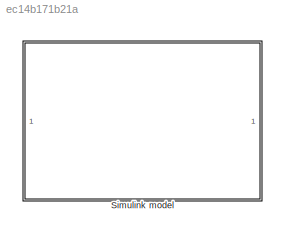
MODEL slx_ec14b171b21a
KIND model
CONFIG AbsTol = auto
CONFIG EnableMultiTasking = off
CONFIG FixedStep = auto
CONFIG MaxStep = auto
CONFIG MinStep = auto
CONFIG RelTol = 1e-3
CONFIG SampleTimeConstraint = Unconstrained
CONFIG SolverName = VariableStepAuto
CONFIG StartTime = 0.0
CONFIG StopTime = 10.0
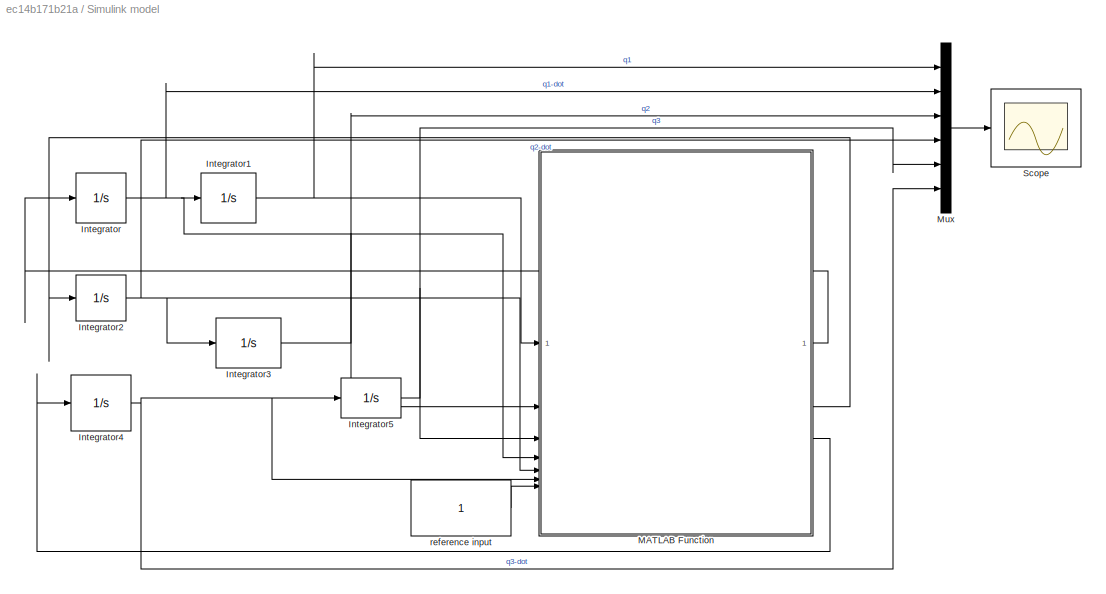
BLOCK [SubSystem] Simulink model
BLOCK [Integrator] Simulink model/Integrator
BLOCK [Integrator] Simulink model/Integrator1
BLOCK [Integrator] Simulink model/Integrator2
BLOCK [Integrator] Simulink model/Integrator3
BLOCK [Integrator] Simulink model/Integrator4
BLOCK [Integrator] Simulink model/Integrator5
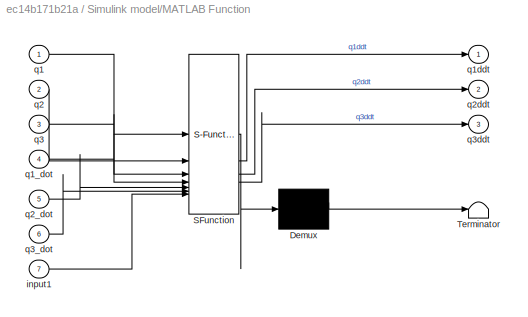
BLOCK [SubSystem] Simulink model/MATLAB Function
  ErrorFcn = Stateflow.Translate.translate
  PermitHierarchicalResolution = ExplicitOnly
  SFBlockType = MATLAB Function
  TreatAsAtomicUnit = on
BLOCK [Demux] Simulink model/MATLAB Function/ Demux 
  Outputs = 1
BLOCK [S-Function] Simulink model/MATLAB Function/ SFunction 
  EnableBusSupport = on
  FunctionName = sf_sfun
  PortCounts = [7 4]
  SFcnIsStateOwnerBlock = off
  SFunctionDeploymentMode = off
  Tag = Stateflow S-Function 2
BLOCK [Terminator] Simulink model/MATLAB Function/ Terminator 
BLOCK [Inport] Simulink model/MATLAB Function/input1
  Port = 7
BLOCK [Inport] Simulink model/MATLAB Function/q1
BLOCK [Inport] Simulink model/MATLAB Function/q1_dot
  Port = 4
BLOCK [Outport] Simulink model/MATLAB Function/q1ddt
BLOCK [Inport] Simulink model/MATLAB Function/q2
  Port = 2
BLOCK [Inport] Simulink model/MATLAB Function/q2_dot
  Port = 5
BLOCK [Outport] Simulink model/MATLAB Function/q2ddt
  Port = 2
BLOCK [Inport] Simulink model/MATLAB Function/q3
  Port = 3
BLOCK [Inport] Simulink model/MATLAB Function/q3_dot
  Port = 6
BLOCK [Outport] Simulink model/MATLAB Function/q3ddt
  Port = 3
BLOCK [Mux] Simulink model/Mux
  DisplayOption = bar
  Inputs = 6
BLOCK [Scope] Simulink model/Scope
  Floating = off
  NumInputPorts = 1
  ScopeSpecificationString = Simulink.scopes.TimeScopeBlockCfg('CurrentConfiguration', extmgr.ConfigurationSet(extmgr.Configuration('Core','General UI',true),extmgr.Configuration('Core','Source UI',true),extmgr.Configuration('Sources','WiredSimulink',true),extmgr.Configuration('Visuals','Time Domain',true),extmgr.Configuration('Tools','Plot Navigation',true),extmgr.Configuration('Tools','Measurements',true)),'Version','2023b'...<+1ch>
BLOCK [Constant] Simulink model/reference input
NET Simulink model/Integrator1:1 -> Simulink model/MATLAB Function:1, Simulink model/Mux:1
NET Simulink model/Integrator2:1 -> Simulink model/Integrator3:1, Simulink model/MATLAB Function:5, Simulink model/Mux:4
NET Simulink model/Integrator3:1 -> Simulink model/MATLAB Function:2, Simulink model/Mux:3
NET Simulink model/Integrator4:1 -> Simulink model/Integrator5:1, Simulink model/MATLAB Function:6, Simulink model/Mux:6
NET Simulink model/Integrator5:1 -> Simulink model/MATLAB Function:3, Simulink model/Mux:5
NET Simulink model/Integrator:1 -> Simulink model/Integrator1:1, Simulink model/MATLAB Function:4, Simulink model/Mux:2
LINE Simulink model/MATLAB Function:1 -> Simulink model/Integrator:1
LINE Simulink model/MATLAB Function:2 -> Simulink model/Integrator2:1
LINE Simulink model/MATLAB Function:3 -> Simulink model/Integrator4:1
LINE Simulink model/Mux:1 -> Simulink model/Scope:1
LINE Simulink model/reference input:1 -> Simulink model/MATLAB Function:7
note: NET lines group one-source signal fan-out (src -> all destinations, sorted); 1:1 wires keep LINE
CHART Simulink model/MATLAB Function states=1 transitions=1
  STATE_LABEL 'eML_blk_kernel()'
  STATE_LABEL 'SCRIPT:\nfunction [q1ddt,q2ddt,q3ddt] = fcn(q1,q2,q3,q1_dot,q2_dot,q3_dot, input1)\n\nI1=(m1/12)*L1*L1;\nI2=(m2/12)*L2*L2;\nI3=(m3/12)*L3*L3;\n\nd11=I1 + I2/2 + I3/2 - (I3*cos(2*x2 + 2*x3))/2 + (L1^2*m1)/4 + L1^2*m2 + L1^2*m3 + (L2^2*m2)/8 + (L2^2*m3)/2 + (L3^2*m3)/8 - (I2*cos(2*x2))/2 - (L2^2*m2*cos(2*x2))/8 - (L2^2*m3*cos(2*x2))/2 - (L3^2*m3*cos(2*x2 + 2*x3))/8 + (L2*L3*m3*cos(x3))/2 - (L2*L3*m3*cos(2*...<+1677ch>'
CHART  states=0 transitions=0
